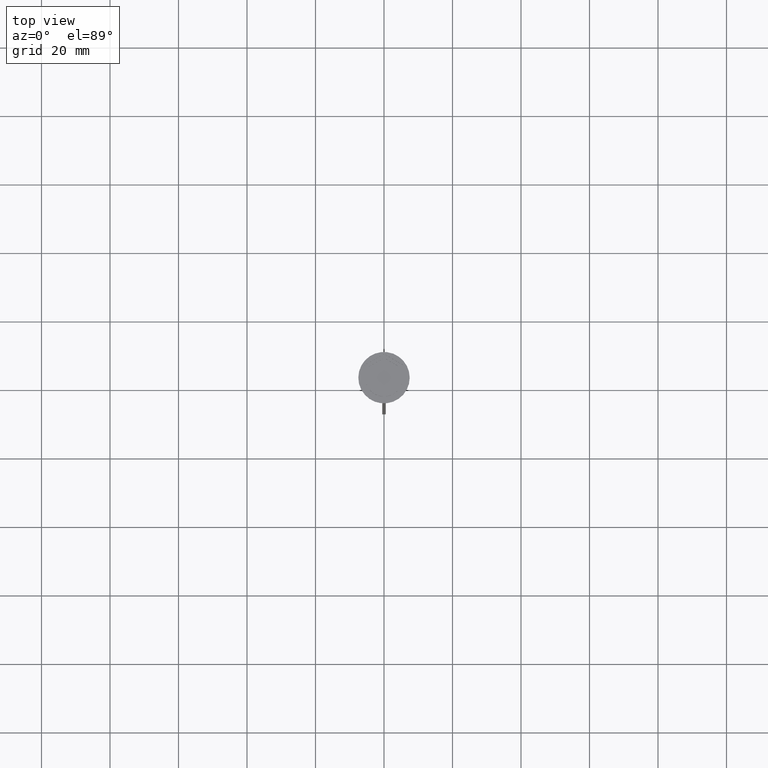
[diagram: clean part render]
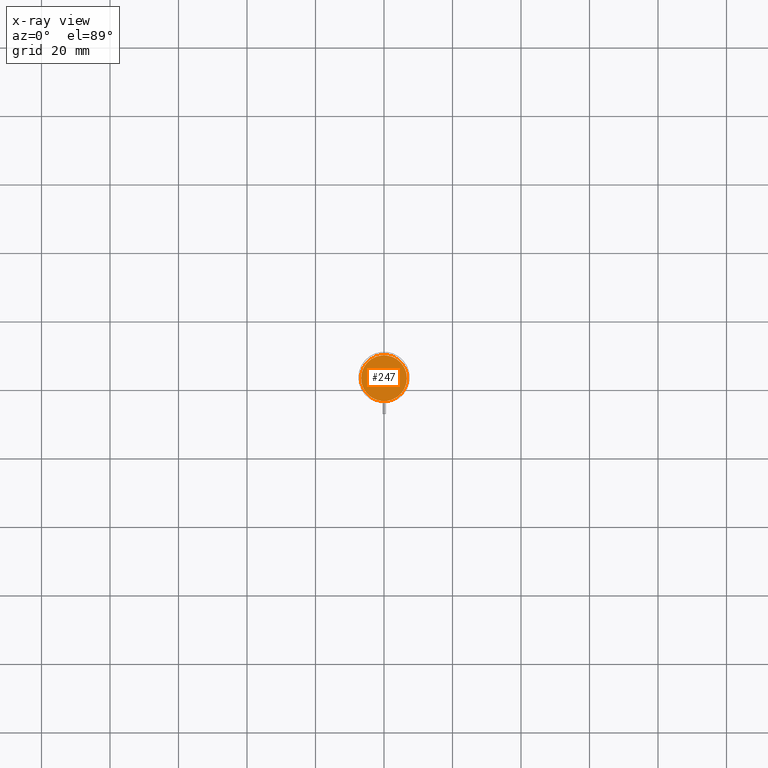
[diagram: x-ray — body ghosted, one internal face saturated and labeled with its STEP entity id]
A machine part, top view, then the same camera in x-ray: the body is ghosted and one INTERNAL B-rep face — a face not visible from any outside direction — is saturated and labeled: STEP entity #247.
In plain terms, the highlighted planar face has unit normal (0, 0, -1).
Its self-contained STEP definition (entity closure, byte-faithful):
#22 = CIRCLE ( 'NONE', #1423, 6.700000000000001066 ) ;
#37 = DIRECTION ( 'NONE',  ( -0.000000000000000000, -0.000000000000000000, 1.000000000000000000 ) ) ;
#80 = CARTESIAN_POINT ( 'NONE',  ( 0.000000000000000000, 0.000000000000000000, -10.50000000000000178 ) ) ;
#247 = ADVANCED_FACE ( 'NONE', ( #1974 ), #1541, .F. ) ;
#293 = DIRECTION ( 'NONE',  ( -1.000000000000000000, 0.000000000000000000, 0.000000000000000000 ) ) ;
#310 = ORIENTED_EDGE ( 'NONE', *, *, #1207, .T. ) ;
#490 = ORIENTED_EDGE ( 'NONE', *, *, #1439, .T. ) ;
#500 = DIRECTION ( 'NONE',  ( -0.000000000000000000, -0.000000000000000000, 1.000000000000000000 ) ) ;
#568 = DIRECTION ( 'NONE',  ( 0.000000000000000000, 0.000000000000000000, -1.000000000000000000 ) ) ;
#995 = CARTESIAN_POINT ( 'NONE',  ( -6.700000000000001066, 0.000000000000000000, -10.50000000000000178 ) ) ;
#1027 = CIRCLE ( 'NONE', #1933, 6.700000000000001066 ) ;
#1158 = CARTESIAN_POINT ( 'NONE',  ( 6.700000000000001066, 8.388830574159370862E-16, -10.50000000000000178 ) ) ;
#1207 = EDGE_CURVE ( 'NONE', #1429, #1472, #22, .T. ) ;
#1423 = AXIS2_PLACEMENT_3D ( 'NONE', #80, #500, #293 ) ;
#1429 = VERTEX_POINT ( 'NONE', #1158 ) ;
#1439 = EDGE_CURVE ( 'NONE', #1472, #1429, #1027, .T. ) ;
#1472 = VERTEX_POINT ( 'NONE', #995 ) ;
#1497 = AXIS2_PLACEMENT_3D ( 'NONE', #1583, #568, #2344 ) ;
#1541 = PLANE ( 'NONE',  #1497 ) ;
#1557 = CARTESIAN_POINT ( 'NONE',  ( 0.000000000000000000, 0.000000000000000000, -10.50000000000000178 ) ) ;
#1583 = CARTESIAN_POINT ( 'NONE',  ( 0.000000000000000000, 0.000000000000000000, -10.50000000000000178 ) ) ;
#1740 = DIRECTION ( 'NONE',  ( -1.000000000000000000, 0.000000000000000000, 0.000000000000000000 ) ) ;
#1933 = AXIS2_PLACEMENT_3D ( 'NONE', #1557, #37, #1740 ) ;
#1974 = FACE_OUTER_BOUND ( 'NONE', #2493, .T. ) ;
#2344 = DIRECTION ( 'NONE',  ( -1.000000000000000000, 0.000000000000000000, -0.000000000000000000 ) ) ;
#2493 = EDGE_LOOP ( 'NONE', ( #490, #310 ) ) ;